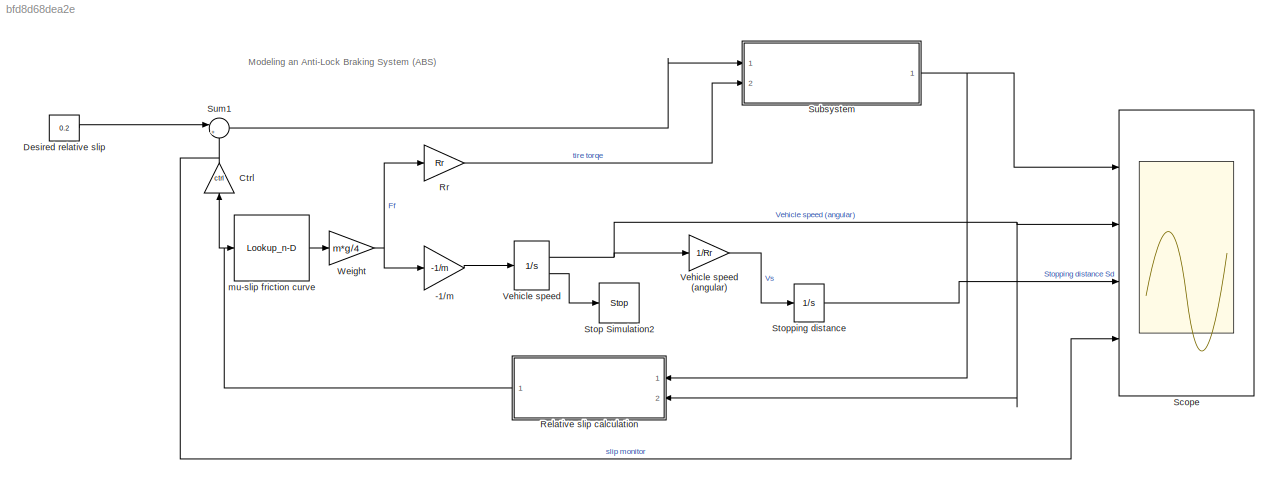
MODEL slx_bfd8d68dea2e
KIND model
CONFIG AbsTol = auto
CONFIG EnableMultiTasking = off
CONFIG FixedStep = auto
CONFIG MaxStep = auto
CONFIG MinStep = auto
CONFIG RelTol = 1e-3
CONFIG SampleTimeConstraint = Unconstrained
CONFIG SolverName = VariableStepAuto
CONFIG StartTime = 0.0
CONFIG StopTime = 10.0
WORKSPACE source: mxarray member
WORKSPACE I = 5
WORKSPACE Kf = 1
WORKSPACE PBmax = 1500
WORKSPACE Rr = 1.25
WORKSPACE TB = 0.01
WORKSPACE ctrl = 1
WORKSPACE g = 32.18
WORKSPACE m = 50
WORKSPACE mu = [0 0.4 0.8 0.97 1 0.98 0.96 0.94 0.92 0.9 0.88 0.855 ... (21 elements, 1x21)]
WORKSPACE slip = [0 0.05 0.1 0.15 0.2 0.25 0.3 0.35 0.4 0.45 0.5 0.55 ... (21 elements, 1x21)]
WORKSPACE v0 = 88
BLOCK [Gain] -1//m
  Gain = -1/m
  OutDataTypeStr = Inherit: Same as input
  ParamDataTypeStr = Inherit: Same as input
  SaturateOnIntegerOverflow = on
BLOCK [Gain] Ctrl
  Gain = ctrl
  NameLocation = left
  OutDataTypeStr = Inherit: Same as input
  ParamDataTypeStr = Inherit: Same as input
  SaturateOnIntegerOverflow = on
BLOCK [Constant] Desired relative slip
  Value = 0.2
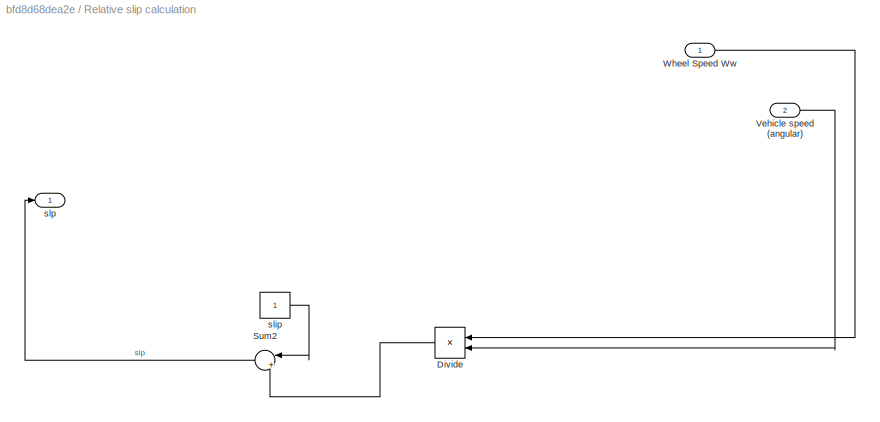
BLOCK [SubSystem] Relative slip calculation
  Ports = [2, 1]
  RequestExecContextInheritance = off
BLOCK [Product] Relative slip calculation/Divide
  Inputs = */
  NameLocation = top
  Ports = [2, 1]
BLOCK [Sum] Relative slip calculation/Sum2
  InputSameDT = on
  Inputs = |+-
  NameLocation = top
  OutDataTypeStr = Inherit: Same as first input
  Ports = [2, 1]
  SaturateOnIntegerOverflow = on
BLOCK [Inport] Relative slip calculation/Vehicle speed (angular)
  Port = 2
BLOCK [Inport] Relative slip calculation/Wheel Speed Ww
BLOCK [Constant] Relative slip calculation/slip
BLOCK [Outport] Relative slip calculation/slp
BLOCK [Gain] Rr
  Gain = Rr
  OutDataTypeStr = Inherit: Same as input
  ParamDataTypeStr = Inherit: Same as input
  SaturateOnIntegerOverflow = on
BLOCK [Scope] Scope
  Floating = off
  NumInputPorts = 4
  Ports = [4]
  ScopeSpecificationString = Simulink.scopes.TimeScopeBlockCfg('CurrentConfiguration', extmgr.ConfigurationSet(extmgr.Configuration('Core','General UI',true),extmgr.Configuration('Core','Source UI',true),extmgr.Configuration('Sources','WiredSimulink',true),extmgr.Configuration('Visuals','Time Domain',true,'SerializedDisplays',{struct('MinYLimReal','-8.8','MaxYLimReal','79.2','YLabelReal','','MinYLimMag','0.00000','MaxYLimMag'...<+3485ch>
BLOCK [Stop] Stop Simulation2
BLOCK [Integrator] Stopping distance
  LowerSaturationLimit = 0
  NameLocation = right
  Ports = [1, 1]
  UpperSaturationLimit = 1000
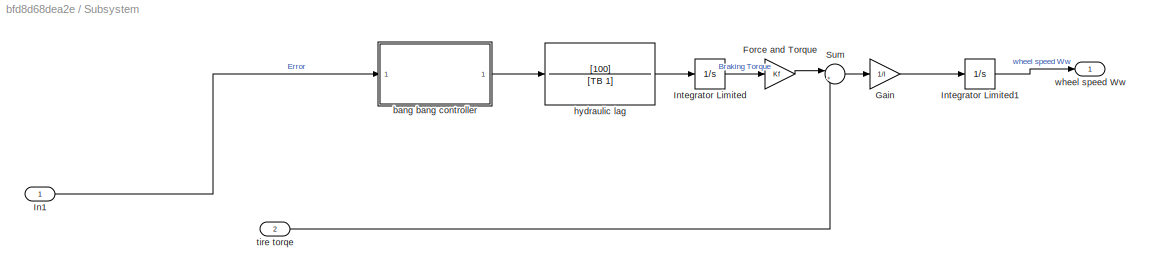
BLOCK [SubSystem] Subsystem
  Ports = [2, 1]
  RequestExecContextInheritance = off
BLOCK [Gain] Subsystem/Force and Torque
  Gain = Kf
BLOCK [Gain] Subsystem/Gain
  Gain = 1/I
BLOCK [Inport] Subsystem/In1
BLOCK [Integrator] Subsystem/Integrator Limited
  LimitOutput = on
  LowerSaturationLimit = 0
  Ports = [1, 1]
  UpperSaturationLimit = PBmax
BLOCK [Integrator] Subsystem/Integrator Limited1
  InitialCondition = v0/Rr
  LimitOutput = on
  LowerSaturationLimit = 0
  Ports = [1, 1]
  UpperSaturationLimit = 1000
BLOCK [Sum] Subsystem/Sum
  Inputs = |+-
  Ports = [2, 1]
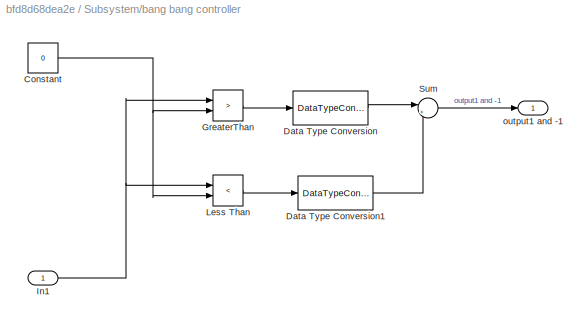
BLOCK [SubSystem] Subsystem/bang bang controller
  Ports = [1, 1]
  RequestExecContextInheritance = off
BLOCK [Constant] Subsystem/bang bang controller/Constant
  Value = 0
BLOCK [DataTypeConversion] Subsystem/bang bang controller/Data Type Conversion
  OutDataTypeStr = double
  SaturateOnIntegerOverflow = off
BLOCK [DataTypeConversion] Subsystem/bang bang controller/Data Type Conversion1
  OutDataTypeStr = double
  SaturateOnIntegerOverflow = off
BLOCK [RelationalOperator] Subsystem/bang bang controller/GreaterThan
  InputSameDT = off
  Operator = >
  OutDataTypeStr = boolean
  Ports = [2, 1]
  RndMeth = Simplest
BLOCK [Inport] Subsystem/bang bang controller/In1
BLOCK [RelationalOperator] Subsystem/bang bang controller/Less Than
  InputSameDT = off
  Operator = <
  OutDataTypeStr = boolean
  Ports = [2, 1]
  RndMeth = Simplest
BLOCK [Sum] Subsystem/bang bang controller/Sum
  Inputs = |+-
  Ports = [2, 1]
BLOCK [Outport] Subsystem/bang bang controller/output1 and -1
BLOCK [TransferFcn] Subsystem/hydraulic lag
  Denominator = [TB 1]
  Numerator = [100]
BLOCK [Inport] Subsystem/tire torqe
  Port = 2
BLOCK [Outport] Subsystem/wheel speed Ww
BLOCK [Sum] Sum1
  InputSameDT = on
  Inputs = |+-
  OutDataTypeStr = Inherit: Same as first input
  Ports = [2, 1]
  SaturateOnIntegerOverflow = on
BLOCK [Integrator] Vehicle speed
  InitialCondition = v0
  LimitOutput = on
  LowerSaturationLimit = 0
  Ports = [1, 2]
  ShowSaturationPort = on
  UpperSaturationLimit = 1000
BLOCK [Gain] Vehicle speed (angular)
  Gain = 1/Rr
  OutDataTypeStr = Inherit: Same as input
  ParamDataTypeStr = Inherit: Same as input
  SaturateOnIntegerOverflow = on
BLOCK [Gain] Weight
  Gain = m*g/4
  OutDataTypeStr = Inherit: Same as input
  ParamDataTypeStr = Inherit: Same as input
  SaturateOnIntegerOverflow = on
BLOCK [Lookup_n-D] mu-slip friction curve
  BreakpointsForDimension1 = slip
  InputPortMap = u0
  NumberOfTableDimensions = 1
  Ports = [1, 1]
  SaturateOnIntegerOverflow = on
  Table = mu
ANNOTATION (root): Modeling an Anti-Lock Braking System (ABS)
LINE -1//m:1 -> Vehicle speed:1
NET Ctrl:1 -> Scope:4, Sum1:2
LINE Desired relative slip:1 -> Sum1:1
LINE Relative slip calculation/Divide:1 -> Relative slip calculation/Sum2:2
LINE Relative slip calculation/Sum2:1 -> Relative slip calculation/slp:1
LINE Relative slip calculation/Vehicle speed (angular):1 -> Relative slip calculation/Divide:2
LINE Relative slip calculation/Wheel Speed Ww:1 -> Relative slip calculation/Divide:1
LINE Relative slip calculation/slip:1 -> Relative slip calculation/Sum2:1
NET Relative slip calculation:1 -> Ctrl:1, mu-slip friction curve:1
LINE Rr:1 -> Subsystem:2
LINE Stopping distance:1 -> Scope:3
LINE Subsystem/Force and Torque:1 -> Subsystem/Sum:1
LINE Subsystem/Gain:1 -> Subsystem/Integrator Limited1:1
LINE Subsystem/In1:1 -> Subsystem/bang bang controller:1
LINE Subsystem/Integrator Limited1:1 -> Subsystem/wheel speed Ww:1
LINE Subsystem/Integrator Limited:1 -> Subsystem/Force and Torque:1
LINE Subsystem/Sum:1 -> Subsystem/Gain:1
NET Subsystem/bang bang controller/Constant:1 -> Subsystem/bang bang controller/GreaterThan:2, Subsystem/bang bang controller/Less Than:2
LINE Subsystem/bang bang controller/Data Type Conversion1:1 -> Subsystem/bang bang controller/Sum:2
LINE Subsystem/bang bang controller/Data Type Conversion:1 -> Subsystem/bang bang controller/Sum:1
LINE Subsystem/bang bang controller/GreaterThan:1 -> Subsystem/bang bang controller/Data Type Conversion:1
NET Subsystem/bang bang controller/In1:1 -> Subsystem/bang bang controller/GreaterThan:1, Subsystem/bang bang controller/Less Than:1
LINE Subsystem/bang bang controller/Less Than:1 -> Subsystem/bang bang controller/Data Type Conversion1:1
LINE Subsystem/bang bang controller/Sum:1 -> Subsystem/bang bang controller/output1 and -1:1
LINE Subsystem/bang bang controller:1 -> Subsystem/hydraulic lag:1
LINE Subsystem/hydraulic lag:1 -> Subsystem/Integrator Limited:1
LINE Subsystem/tire torqe:1 -> Subsystem/Sum:2
NET Subsystem:1 -> Relative slip calculation:1, Scope:1
LINE Sum1:1 -> Subsystem:1
LINE Vehicle speed (angular):1 -> Stopping distance:1
NET Vehicle speed:1 -> Relative slip calculation:2, Scope:2, Vehicle speed (angular):1
LINE Vehicle speed:2 -> Stop Simulation2:1
NET Weight:1 -> -1//m:1, Rr:1
LINE mu-slip friction curve:1 -> Weight:1
note: NET lines group one-source signal fan-out (src -> all destinations, sorted); 1:1 wires keep LINE
